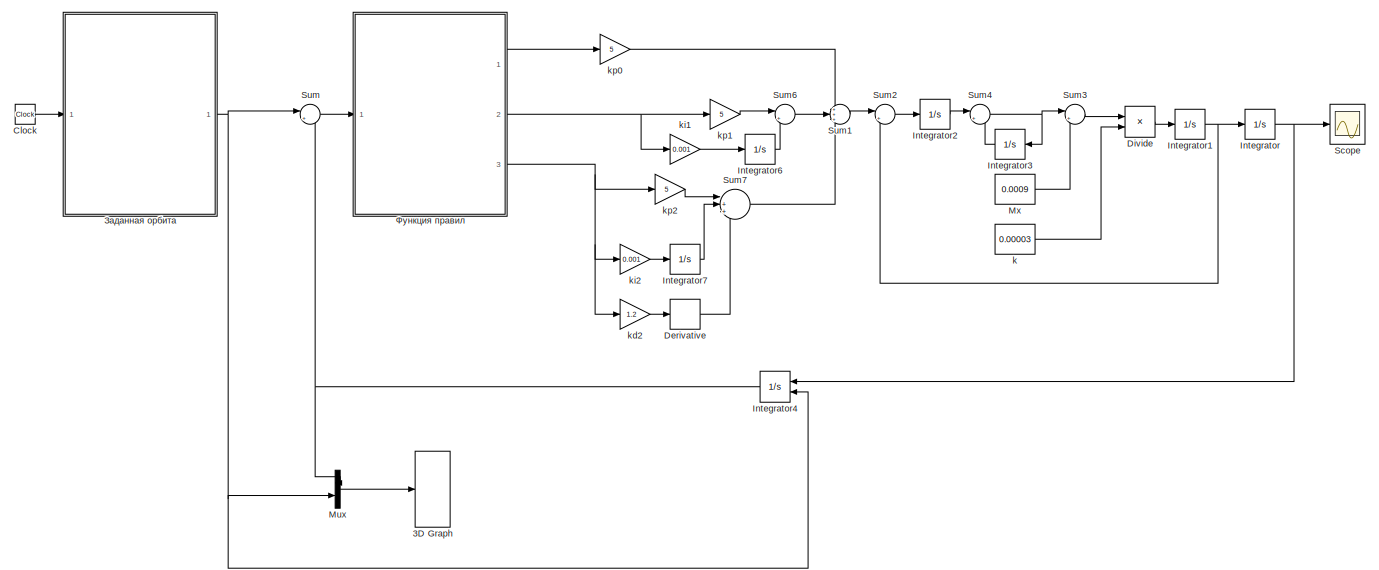
[diagram: root canvas - part 1/2, left side, full height]
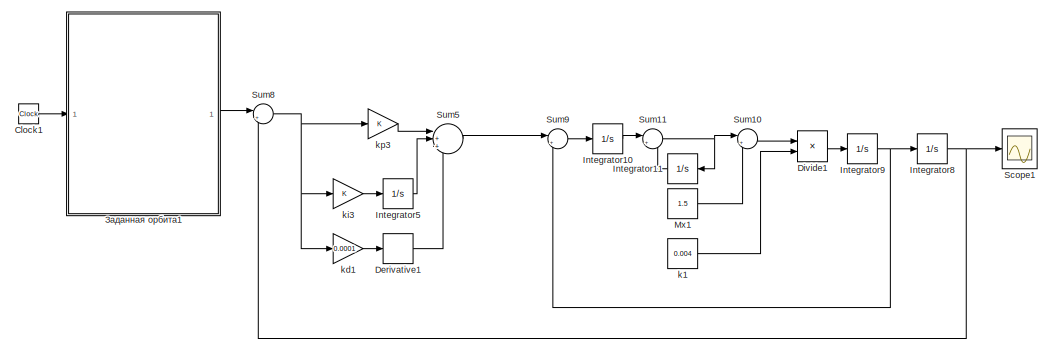
[diagram: root canvas - part 2/2, middle right region]
MODEL slx_47aabf0a7948
KIND model
CONFIG AbsTol = auto
CONFIG EnableMultiTasking = off
CONFIG FixedStep = auto
CONFIG MaxStep = auto
CONFIG MinStep = auto
CONFIG RelTol = 1e-3
CONFIG SampleTimeConstraint = Unconstrained
CONFIG SolverName = VariableStepAuto
CONFIG StartTime = 0.0
CONFIG StopTime = 100
WORKSPACE source: mxarray member
WORKSPACE initial_coord = [0 0 0]
BLOCK [S-Function] 3D Graph
  CopyFcn = if exist('sfun3d','file'), sfun3d([],[],[],'CopyBlock'); end
  DeleteFcn = if exist('sfun3d','file'), sfun3d([],[],[],'DeleteBlock'); end
  EnableBusSupport = off
  FunctionName = sfun3d
  LoadFcn = if exist('sfun3d','file'), sfun3d([],[],[],'LoadBlock'); end
  NameChangeFcn = if exist('sfun3d','file'), sfun3d([],[],[],'NameChange'); end
  Parameters = ax,T,np,cp,gd,ls,mk,mx,hd,tb
  Ports = [1]
  SFcnIsStateOwnerBlock = off
  SFunctionDeploymentMode = off
BLOCK [Clock] Clock
BLOCK [Clock] Clock1
  Commented = on
BLOCK [Derivative] Derivative
BLOCK [Derivative] Derivative1
  Commented = on
BLOCK [Product] Divide
  Inputs = */
  Ports = [2, 1]
BLOCK [Product] Divide1
  Commented = on
  Inputs = */
  Ports = [2, 1]
BLOCK [Integrator] Integrator
  Ports = [1, 1]
BLOCK [Integrator] Integrator1
  Ports = [1, 1]
BLOCK [Integrator] Integrator10
  Commented = on
  Ports = [1, 1]
BLOCK [Integrator] Integrator11
  Commented = on
  NameLocation = top
  Ports = [1, 1]
BLOCK [Integrator] Integrator2
  Ports = [1, 1]
BLOCK [Integrator] Integrator3
  NameLocation = top
  Ports = [1, 1]
BLOCK [Integrator] Integrator4
  ContinuousStateAttributes = 'position'
  InitialConditionSource = external
  NameLocation = top
  Ports = [2, 1]
BLOCK [Integrator] Integrator5
  Commented = on
  Ports = [1, 1]
BLOCK [Integrator] Integrator6
  Ports = [1, 1]
BLOCK [Integrator] Integrator7
  Ports = [1, 1]
BLOCK [Integrator] Integrator8
  Commented = on
  Ports = [1, 1]
BLOCK [Integrator] Integrator9
  Commented = on
  Ports = [1, 1]
BLOCK [Mux] Mux
  DisplayOption = bar
  Inputs = 2
  Ports = [2, 1]
BLOCK [Constant] Mx
  Value = 0.0009
BLOCK [Constant] Mx1
  Commented = on
  Value = 1.5
BLOCK [Scope] Scope
  Floating = off
  NumInputPorts = 1
  Ports = [1]
  ScopeSpecificationString = Simulink.scopes.TimeScopeBlockCfg('CurrentConfiguration', extmgr.ConfigurationSet(extmgr.Configuration('Core','General UI',true),extmgr.Configuration('Core','Source UI',true),extmgr.Configuration('Sources','WiredSimulink',true),extmgr.Configuration('Visuals','Time Domain',true,'SerializedDisplays',{struct('MinYLimReal','-5.8027','MaxYLimReal','2.90608','YLabelReal','','MinYLimMag','0.00000','MaxYL...<+1427ch>
BLOCK [Scope] Scope1
  Commented = on
  Floating = off
  NumInputPorts = 1
  Ports = [1]
  ScopeSpecificationString = Simulink.scopes.TimeScopeBlockCfg('CurrentConfiguration', extmgr.ConfigurationSet(extmgr.Configuration('Core','General UI',true),extmgr.Configuration('Core','Source UI',true),extmgr.Configuration('Sources','WiredSimulink',true,'DataLoggingVariableName','ScopeData1'),extmgr.Configuration('Visuals','Time Domain',true,'SerializedDisplays',{struct('MinYLimReal','-11.05755','MaxYLimReal','7.77746','YLa...<+1477ch>
BLOCK [Sum] Sum
  Inputs = |+-
  Ports = [2, 1]
BLOCK [Sum] Sum1
  Inputs = +++
  Ports = [3, 1]
BLOCK [Sum] Sum10
  Commented = on
  Inputs = |++
  Ports = [2, 1]
BLOCK [Sum] Sum11
  Commented = on
  Inputs = |+-
  Ports = [2, 1]
BLOCK [Sum] Sum2
  Inputs = |+-
  Ports = [2, 1]
BLOCK [Sum] Sum3
  Inputs = |++
  Ports = [2, 1]
BLOCK [Sum] Sum4
  Inputs = |+-
  Ports = [2, 1]
BLOCK [Sum] Sum5
  Commented = on
  Inputs = |+++
  Ports = [3, 1]
BLOCK [Sum] Sum6
  Inputs = |++
  Ports = [2, 1]
BLOCK [Sum] Sum7
  Inputs = |+++
  Ports = [3, 1]
BLOCK [Sum] Sum8
  Commented = on
  Inputs = |+-
  Ports = [2, 1]
BLOCK [Sum] Sum9
  Commented = on
  Inputs = |+-
  Ports = [2, 1]
BLOCK [Constant] k
  Value = 0.00003
BLOCK [Constant] k1
  Commented = on
  Value = 0.004
BLOCK [Gain] kd1
  Commented = on
  Gain = 0.0001
BLOCK [Gain] kd2
  Gain = 1.2
BLOCK [Gain] ki1
  Gain = 0.001
BLOCK [Gain] ki2
  Gain = 0.001
BLOCK [Gain] ki3
  Commented = on
BLOCK [Gain] kp0
  Gain = 5
BLOCK [Gain] kp1
  Gain = 5
BLOCK [Gain] kp2
  Gain = 5
BLOCK [Gain] kp3
  Commented = on
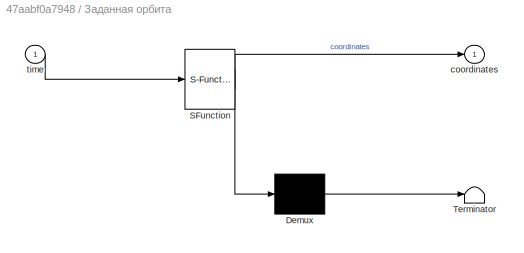
BLOCK [SubSystem] Заданная орбита
  ErrorFcn = Stateflow.Translate.translate
  PermitHierarchicalResolution = ExplicitOnly
  Ports = [1, 1]
  RequestExecContextInheritance = off
  SFBlockType = MATLAB Function
  TreatAsAtomicUnit = on
BLOCK [Demux] Заданная орбита/ Demux 
  Outputs = 1
  Ports = [1, 1]
BLOCK [S-Function] Заданная орбита/ SFunction 
  EnableBusSupport = on
  FunctionName = sf_sfun
  PortCounts = [1 2]
  Ports = [1, 2]
  SFcnIsStateOwnerBlock = off
  SFunctionDeploymentMode = off
  Tag = Stateflow S-Function 1
BLOCK [Terminator] Заданная орбита/ Terminator 
BLOCK [Outport] Заданная орбита/coordinates
BLOCK [Inport] Заданная орбита/time
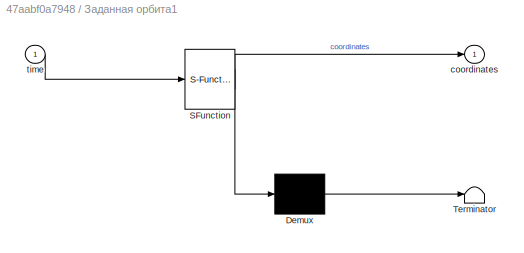
BLOCK [SubSystem] Заданная орбита1
  Commented = on
  ErrorFcn = Stateflow.Translate.translate
  PermitHierarchicalResolution = ExplicitOnly
  Ports = [1, 1]
  RequestExecContextInheritance = off
  SFBlockType = MATLAB Function
  TreatAsAtomicUnit = on
BLOCK [Demux] Заданная орбита1/ Demux 
  Outputs = 1
  Ports = [1, 1]
BLOCK [S-Function] Заданная орбита1/ SFunction 
  EnableBusSupport = on
  FunctionName = sf_sfun
  PortCounts = [1 2]
  Ports = [1, 2]
  SFcnIsStateOwnerBlock = off
  SFunctionDeploymentMode = off
  Tag = Stateflow S-Function 3
BLOCK [Terminator] Заданная орбита1/ Terminator 
BLOCK [Outport] Заданная орбита1/coordinates
BLOCK [Inport] Заданная орбита1/time
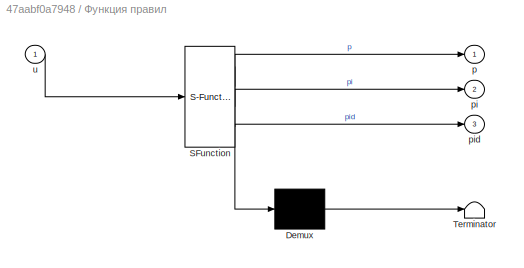
BLOCK [SubSystem] Функция правил
  ErrorFcn = Stateflow.Translate.translate
  PermitHierarchicalResolution = ExplicitOnly
  Ports = [1, 3]
  RequestExecContextInheritance = off
  SFBlockType = MATLAB Function
  TreatAsAtomicUnit = on
BLOCK [Demux] Функция правил/ Demux 
  Outputs = 1
  Ports = [1, 1]
BLOCK [S-Function] Функция правил/ SFunction 
  EnableBusSupport = on
  FunctionName = sf_sfun
  PortCounts = [1 4]
  Ports = [1, 4]
  SFcnIsStateOwnerBlock = off
  SFunctionDeploymentMode = off
  Tag = Stateflow S-Function 2
BLOCK [Terminator] Функция правил/ Terminator 
BLOCK [Outport] Функция правил/p
BLOCK [Outport] Функция правил/pi
  Port = 2
BLOCK [Outport] Функция правил/pid
  Port = 3
BLOCK [Inport] Функция правил/u
LINE Clock1:1 -> Заданная орбита1:1
LINE Clock:1 -> Заданная орбита:1
LINE Derivative1:1 -> Sum5:3
LINE Derivative:1 -> Sum7:3
LINE Divide1:1 -> Integrator9:1
LINE Divide:1 -> Integrator1:1
LINE Integrator10:1 -> Sum11:1
LINE Integrator11:1 -> Sum11:2
NET Integrator1:1 -> Integrator:1, Sum2:2
LINE Integrator2:1 -> Sum4:1
LINE Integrator3:1 -> Sum4:2
NET Integrator4:1 -> Mux:1, Sum:2
LINE Integrator5:1 -> Sum5:2
LINE Integrator6:1 -> Sum6:2
LINE Integrator7:1 -> Sum7:2
NET Integrator8:1 -> Scope1:1, Sum8:2
NET Integrator9:1 -> Integrator8:1, Sum9:2
NET Integrator:1 -> Integrator4:1, Scope:1
LINE Mux:1 -> 3D Graph:1
LINE Mx1:1 -> Sum10:2
LINE Mx:1 -> Sum3:2
LINE Sum10:1 -> Divide1:1
NET Sum11:1 -> Integrator11:1, Sum10:1
LINE Sum1:1 -> Sum2:1
LINE Sum2:1 -> Integrator2:1
LINE Sum3:1 -> Divide:1
NET Sum4:1 -> Integrator3:1, Sum3:1
LINE Sum5:1 -> Sum9:1
LINE Sum6:1 -> Sum1:2
LINE Sum7:1 -> Sum1:3
NET Sum8:1 -> kd1:1, ki3:1, kp3:1
LINE Sum9:1 -> Integrator10:1
LINE Sum:1 -> Функция правил:1
LINE k1:1 -> Divide1:2
LINE k:1 -> Divide:2
LINE kd1:1 -> Derivative1:1
LINE kd2:1 -> Derivative:1
LINE ki1:1 -> Integrator6:1
LINE ki2:1 -> Integrator7:1
LINE ki3:1 -> Integrator5:1
LINE kp0:1 -> Sum1:1
LINE kp1:1 -> Sum6:1
LINE kp2:1 -> Sum7:1
LINE kp3:1 -> Sum5:1
LINE Заданная орбита1:1 -> Sum8:1
NET Заданная орбита:1 -> Integrator4:2, Mux:2, Sum:1
LINE Функция правил:1 -> kp0:1
NET Функция правил:2 -> ki1:1, kp1:1
NET Функция правил:3 -> kd2:1, ki2:1, kp2:1
note: NET lines group one-source signal fan-out (src -> all destinations, sorted); 1:1 wires keep LINE
CHART Заданная орбита states=1 transitions=1
  STATE_LABEL 'eML_blk_kernel()'
  STATE_LABEL 'SCRIPT:\nfunction coordinates = fcn(time)\n\nomega_big = pi / 4;\nomega = 0;\ni = pi / 5;\ne = 0.1;\np = 5;\ntau_m = 30;\na = p / (1 - e^2);\nb = a * sqrt(1 - e^2);\nM = 0.03;\nnu = 4 * pi^2 * a ^3 / tau_m^2;\nn = sqrt(nu / a^3);\n\npersistent E;\n\nif isempty(E)\n    E = M;\nend\n\nE = n*(time - tau_m) + e*sin(E);\n\nb11 = cos(omega_big)*cos(omega) - sin(omega_big)*sin(omega)*cos(i);\nb12 = -cos(omega_big)*cos(omega) - ...<+377ch>'
CHART Функция правил states=1 transitions=1
  STATE_LABEL 'eML_blk_kernel()'
  STATE_LABEL 'SCRIPT:\nfunction [p, pi, pid] = fcn(u)\n\np = [0 0 0];\npi = [0 0 0];\npid = [0 0 0];\nerror = sqrt(u(1)^2 + u(2)^2 + u(3)^2);\n\nif abs(error) < 0.5\n  p = [0 0 0];\n  pi = [0 0 0];\n  pid = u;\nelseif abs(error) >= 0.5 && abs(error) < 0.7\n  p = [0 0 0];\n  pi = u;\n  pid = [0 0 0];\nelseif abs(error) >= 0.7\n  p = u;\n  pi = [0 0 0];\n  pid = [0 0 0];\nend'
CHART Заданная орбита1 states=1 transitions=1
  STATE_LABEL 'eML_blk_kernel()'
  STATE_LABEL 'SCRIPT:\nfunction coordinates = fcn(time)\n\nomega_big = pi / 4;\nomega = 0;\ni = pi / 5;\ne = 0.5;\np = 3;\ntau_m = 30;\na = p / (1 - e^2);\nb = a * sqrt(1 - e^2);\nM = 0.03;\nnu = 4 * pi^2 * a ^3 / tau_m^2;\nn = sqrt(nu / a^3);\n\npersistent E;\n\nif isempty(E)\n    E = M;\nend\n\nE = n*(time - tau_m) + e*sin(E);\n\nb11 = cos(omega_big)*cos(omega) - sin(omega_big)*sin(omega)*cos(i);\nb12 = -cos(omega_big)*cos(omega) - ...<+376ch>'
CHART  states=0 transitions=0
CHART  states=0 transitions=0
CHART  states=0 transitions=0
